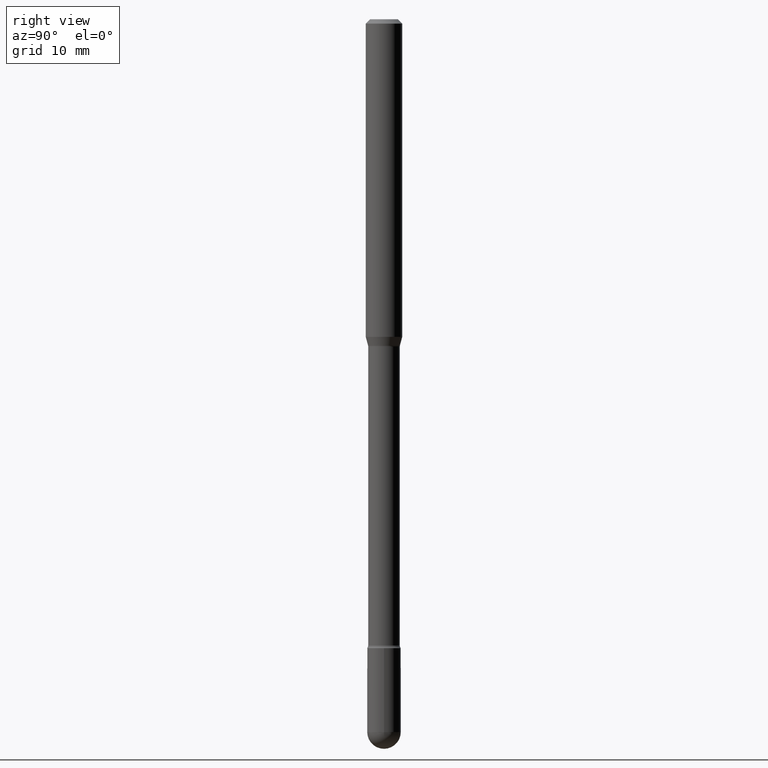
[diagram: clean part render]
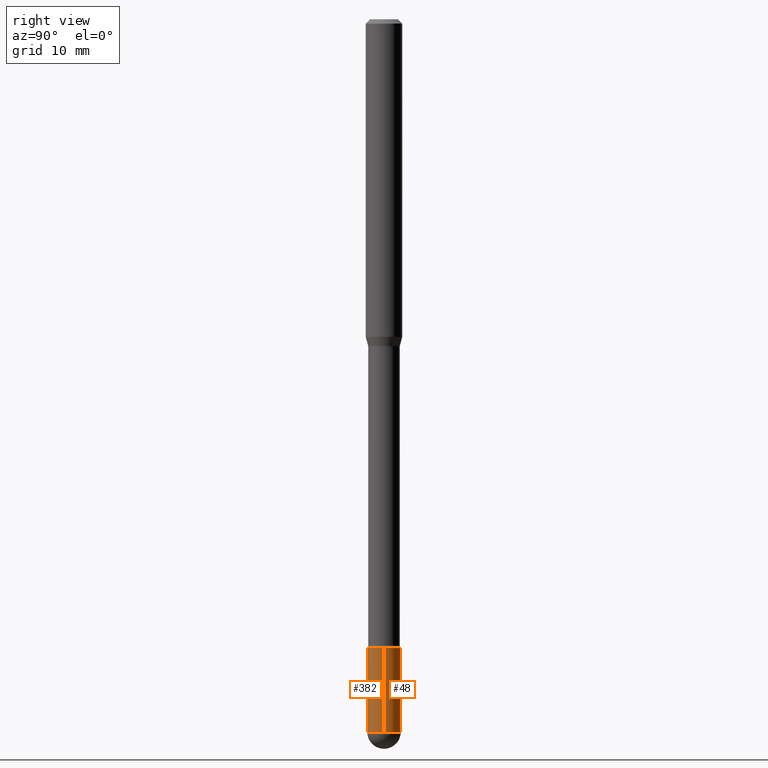
[diagram: same view with one multi-face feature highlighted, each face labeled with its STEP entity id]
A machine part, right view. The highlighted faces form ONE feature: a constant-radius fillet chain: 2 tangent blend faces with common blend radius 1.4605 mm. The faces share edges in the B-rep.
Their STEP definitions:
[1] entity #382 (Cylinder):
#6 = ORIENTED_EDGE ( 'NONE', *, *, #269, .F. ) ;
#7 = CARTESIAN_POINT ( 'NONE',  ( -0.05750000000000000250, -7.617480654603624176E-15, -2.155000000000000249 ) ) ;
#19 = DIRECTION ( 'NONE',  ( -2.445468806185136597E-29, 3.491481338843145583E-15, 1.000000000000000000 ) ) ;
#35 = DIRECTION ( 'NONE',  ( -2.445468806185136597E-29, 3.491481338843145583E-15, 1.000000000000000000 ) ) ;
#56 = EDGE_CURVE ( 'NONE', #222, #73, #557, .T. ) ;
#73 = VERTEX_POINT ( 'NONE', #249 ) ;
#122 = CARTESIAN_POINT ( 'NONE',  ( 0.05750000000000000250, -7.925662639173940169E-15, -2.155000000000000249 ) ) ;
#132 = DIRECTION ( 'NONE',  ( -2.445468806185136877E-29, 3.491481338843145188E-15, 1.000000000000000000 ) ) ;
#133 = EDGE_CURVE ( 'NONE', #221, #439, #392, .T. ) ;
#149 = AXIS2_PLACEMENT_3D ( 'NONE', #566, #443, #522 ) ;
#165 = AXIS2_PLACEMENT_3D ( 'NONE', #256, #35, #298 ) ;
#166 = EDGE_CURVE ( 'NONE', #222, #183, #308, .T. ) ;
#183 = VERTEX_POINT ( 'NONE', #7 ) ;
#184 = DIRECTION ( 'NONE',  ( 1.000000000000000000, -6.982962677686273810E-15, 0.000000000000000000 ) ) ;
#200 = AXIS2_PLACEMENT_3D ( 'NONE', #417, #19, #184 ) ;
#208 = DIRECTION ( 'NONE',  ( 1.000000000000000000, -6.982962677686273810E-15, 0.000000000000000000 ) ) ;
#221 = VERTEX_POINT ( 'NONE', #223 ) ;
#222 = VERTEX_POINT ( 'NONE', #485 ) ;
#223 = CARTESIAN_POINT ( 'NONE',  ( 0.05750000000000000250, -8.427563081632642561E-15, -2.442499999999999893 ) ) ;
#249 = CARTESIAN_POINT ( 'NONE',  ( -4.085620730619980656E-16, -0.05750000000000856509, -2.442499999999999893 ) ) ;
#253 = CARTESIAN_POINT ( 'NONE',  ( 5.973057559107196227E-29, -8.527943170124383355E-15, -2.442499999999999893 ) ) ;
#256 = CARTESIAN_POINT ( 'NONE',  ( 0.000000000000000000, 0.000000000000000000, 0.000000000000000000 ) ) ;
#263 = DIRECTION ( 'NONE',  ( -2.445468806185136877E-29, 3.491481338843145188E-15, 1.000000000000000000 ) ) ;
#269 = EDGE_CURVE ( 'NONE', #183, #439, #405, .T. ) ;
#271 = ORIENTED_EDGE ( 'NONE', *, *, #133, .T. ) ;
#298 = DIRECTION ( 'NONE',  ( 1.000000000000000000, -6.982962677686265922E-15, 4.876176775795935232E-29 ) ) ;
#301 = CYLINDRICAL_SURFACE ( 'NONE', #165, 0.05750000000000000250 ) ;
#308 = LINE ( 'NONE', #317, #359 ) ;
#317 = CARTESIAN_POINT ( 'NONE',  ( -0.05750000000000000250, 4.085620730620576246E-16, -2.828387676896570712E-30 ) ) ;
#322 = ORIENTED_EDGE ( 'NONE', *, *, #544, .T. ) ;
#329 = AXIS2_PLACEMENT_3D ( 'NONE', #253, #423, #208 ) ;
#359 = VECTOR ( 'NONE', #132, 39.37007874015748143 ) ;
#380 = CARTESIAN_POINT ( 'NONE',  ( 0.05750000000000000250, -4.015203539669603161E-16, 2.803801646082662941E-30 ) ) ;
#382 = ADVANCED_FACE ( 'NONE', ( #564 ), #301, .T. ) ;
#392 = LINE ( 'NONE', #380, #398 ) ;
#394 = ORIENTED_EDGE ( 'NONE', *, *, #56, .T. ) ;
#398 = VECTOR ( 'NONE', #263, 39.37007874015748143 ) ;
#405 = CIRCLE ( 'NONE', #200, 0.05750000000000000250 ) ;
#417 = CARTESIAN_POINT ( 'NONE',  ( 5.269985277328969904E-29, -7.524142285206980149E-15, -2.155000000000000249 ) ) ;
#423 = DIRECTION ( 'NONE',  ( -2.445468806185136597E-29, 3.491481338843145583E-15, 1.000000000000000000 ) ) ;
#439 = VERTEX_POINT ( 'NONE', #122 ) ;
#443 = DIRECTION ( 'NONE',  ( -2.445468806185136597E-29, 3.491481338843145583E-15, 1.000000000000000000 ) ) ;
#485 = CARTESIAN_POINT ( 'NONE',  ( -0.05750000000000000250, -7.617480654603624176E-15, -2.442499999999999893 ) ) ;
#494 = ORIENTED_EDGE ( 'NONE', *, *, #166, .F. ) ;
#500 = CIRCLE ( 'NONE', #149, 0.05750000000000000250 ) ;
#522 = DIRECTION ( 'NONE',  ( 1.000000000000000000, -6.982962677686273810E-15, 0.000000000000000000 ) ) ;
#523 = EDGE_LOOP ( 'NONE', ( #494, #394, #322, #271, #6 ) ) ;
#544 = EDGE_CURVE ( 'NONE', #73, #221, #500, .T. ) ;
#557 = CIRCLE ( 'NONE', #329, 0.05750000000000000250 ) ;
#564 = FACE_OUTER_BOUND ( 'NONE', #523, .T. ) ;
#566 = CARTESIAN_POINT ( 'NONE',  ( 5.973057559107196227E-29, -8.527943170124383355E-15, -2.442499999999999893 ) ) ;
[2] entity #48 (Cylinder):
#7 = CARTESIAN_POINT ( 'NONE',  ( -0.05750000000000000250, -7.617480654603624176E-15, -2.155000000000000249 ) ) ;
#16 = CIRCLE ( 'NONE', #532, 0.05750000000000000250 ) ;
#42 = DIRECTION ( 'NONE',  ( 1.000000000000000000, -6.982962677686273810E-15, 0.000000000000000000 ) ) ;
#48 = ADVANCED_FACE ( 'NONE', ( #377 ), #158, .T. ) ;
#76 = DIRECTION ( 'NONE',  ( -2.445468806185136597E-29, 3.491481338843145583E-15, 1.000000000000000000 ) ) ;
#103 = ORIENTED_EDGE ( 'NONE', *, *, #124, .F. ) ;
#114 = DIRECTION ( 'NONE',  ( -2.445468806185136597E-29, 3.491481338843145583E-15, 1.000000000000000000 ) ) ;
#122 = CARTESIAN_POINT ( 'NONE',  ( 0.05750000000000000250, -7.925662639173940169E-15, -2.155000000000000249 ) ) ;
#124 = EDGE_CURVE ( 'NONE', #439, #183, #16, .T. ) ;
#132 = DIRECTION ( 'NONE',  ( -2.445468806185136877E-29, 3.491481338843145188E-15, 1.000000000000000000 ) ) ;
#133 = EDGE_CURVE ( 'NONE', #221, #439, #392, .T. ) ;
#156 = CARTESIAN_POINT ( 'NONE',  ( 5.973057559107196227E-29, -8.527943170124383355E-15, -2.442499999999999893 ) ) ;
#158 = CYLINDRICAL_SURFACE ( 'NONE', #258, 0.05750000000000000250 ) ;
#166 = EDGE_CURVE ( 'NONE', #222, #183, #308, .T. ) ;
#183 = VERTEX_POINT ( 'NONE', #7 ) ;
#203 = DIRECTION ( 'NONE',  ( 1.000000000000000000, -6.982962677686273810E-15, 0.000000000000000000 ) ) ;
#221 = VERTEX_POINT ( 'NONE', #223 ) ;
#222 = VERTEX_POINT ( 'NONE', #485 ) ;
#223 = CARTESIAN_POINT ( 'NONE',  ( 0.05750000000000000250, -8.427563081632642561E-15, -2.442499999999999893 ) ) ;
#224 = EDGE_CURVE ( 'NONE', #221, #456, #514, .T. ) ;
#245 = DIRECTION ( 'NONE',  ( 1.000000000000000000, -6.982962677686265922E-15, 4.876176775795935232E-29 ) ) ;
#257 = CARTESIAN_POINT ( 'NONE',  ( 5.269985277328969904E-29, -7.524142285206980149E-15, -2.155000000000000249 ) ) ;
#258 = AXIS2_PLACEMENT_3D ( 'NONE', #304, #76, #245 ) ;
#263 = DIRECTION ( 'NONE',  ( -2.445468806185136877E-29, 3.491481338843145188E-15, 1.000000000000000000 ) ) ;
#268 = DIRECTION ( 'NONE',  ( -2.445468806185136597E-29, 3.491481338843145583E-15, 1.000000000000000000 ) ) ;
#304 = CARTESIAN_POINT ( 'NONE',  ( 0.000000000000000000, 0.000000000000000000, 0.000000000000000000 ) ) ;
#308 = LINE ( 'NONE', #317, #359 ) ;
#317 = CARTESIAN_POINT ( 'NONE',  ( -0.05750000000000000250, 4.085620730620576246E-16, -2.828387676896570712E-30 ) ) ;
#332 = AXIS2_PLACEMENT_3D ( 'NONE', #156, #336, #203 ) ;
#336 = DIRECTION ( 'NONE',  ( -2.445468806185136597E-29, 3.491481338843145583E-15, 1.000000000000000000 ) ) ;
#339 = CARTESIAN_POINT ( 'NONE',  ( 4.015203539670203189E-16, 0.05749999999999150929, -2.442500000000000338 ) ) ;
#345 = CIRCLE ( 'NONE', #332, 0.05750000000000000250 ) ;
#354 = EDGE_LOOP ( 'NONE', ( #497, #396, #103, #484, #464 ) ) ;
#359 = VECTOR ( 'NONE', #132, 39.37007874015748143 ) ;
#377 = FACE_OUTER_BOUND ( 'NONE', #354, .T. ) ;
#380 = CARTESIAN_POINT ( 'NONE',  ( 0.05750000000000000250, -4.015203539669603161E-16, 2.803801646082662941E-30 ) ) ;
#392 = LINE ( 'NONE', #380, #398 ) ;
#396 = ORIENTED_EDGE ( 'NONE', *, *, #166, .T. ) ;
#398 = VECTOR ( 'NONE', #263, 39.37007874015748143 ) ;
#439 = VERTEX_POINT ( 'NONE', #122 ) ;
#445 = CARTESIAN_POINT ( 'NONE',  ( 5.973057559107196227E-29, -8.527943170124383355E-15, -2.442499999999999893 ) ) ;
#456 = VERTEX_POINT ( 'NONE', #339 ) ;
#464 = ORIENTED_EDGE ( 'NONE', *, *, #224, .T. ) ;
#472 = EDGE_CURVE ( 'NONE', #456, #222, #345, .T. ) ;
#484 = ORIENTED_EDGE ( 'NONE', *, *, #133, .F. ) ;
#485 = CARTESIAN_POINT ( 'NONE',  ( -0.05750000000000000250, -7.617480654603624176E-15, -2.442499999999999893 ) ) ;
#497 = ORIENTED_EDGE ( 'NONE', *, *, #472, .T. ) ;
#514 = CIRCLE ( 'NONE', #525, 0.05750000000000000250 ) ;
#525 = AXIS2_PLACEMENT_3D ( 'NONE', #445, #268, #541 ) ;
#532 = AXIS2_PLACEMENT_3D ( 'NONE', #257, #114, #42 ) ;
#541 = DIRECTION ( 'NONE',  ( 1.000000000000000000, -6.982962677686273810E-15, 0.000000000000000000 ) ) ;